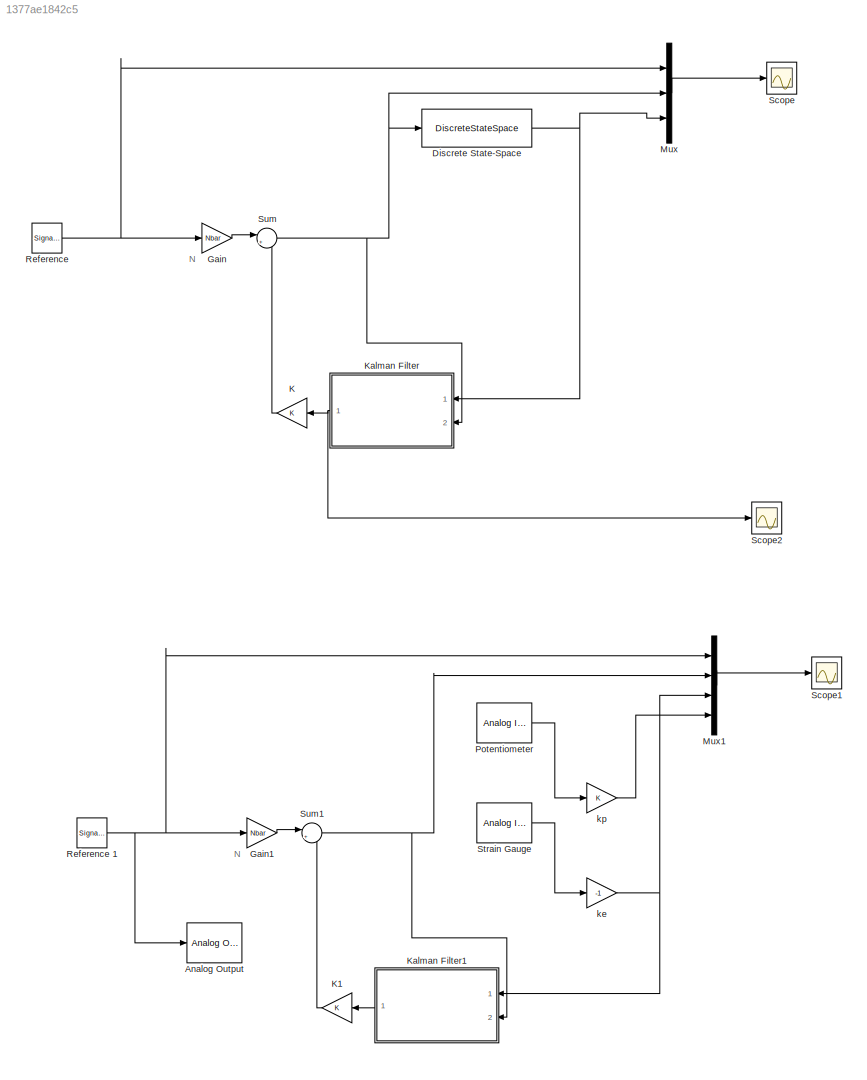
MODEL slx_1377ae1842c5
KIND model
CONFIG AbsTol = auto
CONFIG FixedStep = auto
CONFIG MaxStep = auto
CONFIG MinStep = auto
CONFIG RelTol = 1e-3
CONFIG SampleTimeConstraint = Unconstrained
CONFIG Solver = ode45
CONFIG SolverMode = Auto
CONFIG SolverName = ode45
CONFIG StartTime = 0.0
CONFIG StopTime = 10.0
BLOCK [Reference]  Potentiometer  REF=sldrtlib/Analog Input
  AttributesFormatString = National Instruments\nPCI-MIO-16E-4 [auto]
  Channels = 1
  Commented = on
  DataType = 1
  DrvAddress = 4294967295
  DrvName = National_Instruments/PCI-MIO-16E-4
  DrvOptions = [0 0 0 0 0 0]
  MaxMissedTicks = 10
  Ports = [0, 1]
  RangeMode = 1
  SampleTime = 0.01
  ShowMissedTicks = off
  SourceBlock = sldrtlib/Analog Input
  SourceType = Simulink Desktop Real-Time Analog Input
  VoltRange = 1
  YieldWhenWaiting = off
BLOCK [Reference] Analog Output  REF=sldrtlib/Analog Output
  AttributesFormatString = National Instruments\nPCI-MIO-16E-4 [auto]
  Channels = 1
  Commented = on
  DrvAddress = 4294967295
  DrvName = National_Instruments/PCI-MIO-16E-4
  DrvOptions = [0 0 0 0 0 0]
  FinalValue = 0
  InitialValue = 0
  MaxMissedTicks = 10
  Ports = [1]
  RangeMode = 1
  SampleTime = 0.01
  ShowMissedTicks = off
  SourceBlock = sldrtlib/Analog Output
  SourceType = Simulink Desktop Real-Time Analog Output
  VoltRange = 1
  YieldWhenWaiting = off
BLOCK [DiscreteStateSpace] Discrete State-Space
  A = A
  B = B
  C = C
  D = D
  SampleTime = 0.02
BLOCK [Gain] Gain
  Gain = Nbar
  Multiplication = Matrix(K*u)
  OutDataTypeStr = Inherit: Inherit via internal rule
  ParamDataTypeStr = Inherit: Inherit via internal rule
  SaturateOnIntegerOverflow = off
BLOCK [Gain] Gain1
  Commented = on
  Gain = Nbar
  Multiplication = Matrix(K*u)
  OutDataTypeStr = Inherit: Inherit via internal rule
  ParamDataTypeStr = Inherit: Inherit via internal rule
  SaturateOnIntegerOverflow = off
BLOCK [Gain] K
  Gain = K
  Multiplication = Matrix(K*u)
  OutDataTypeStr = Inherit: Inherit via internal rule
  ParamDataTypeStr = Inherit: Inherit via internal rule
  SaturateOnIntegerOverflow = off
BLOCK [Gain] K1
  Commented = on
  Gain = K
  Multiplication = Matrix(K*u)
  OutDataTypeStr = Inherit: Inherit via internal rule
  ParamDataTypeStr = Inherit: Inherit via internal rule
  SaturateOnIntegerOverflow = off
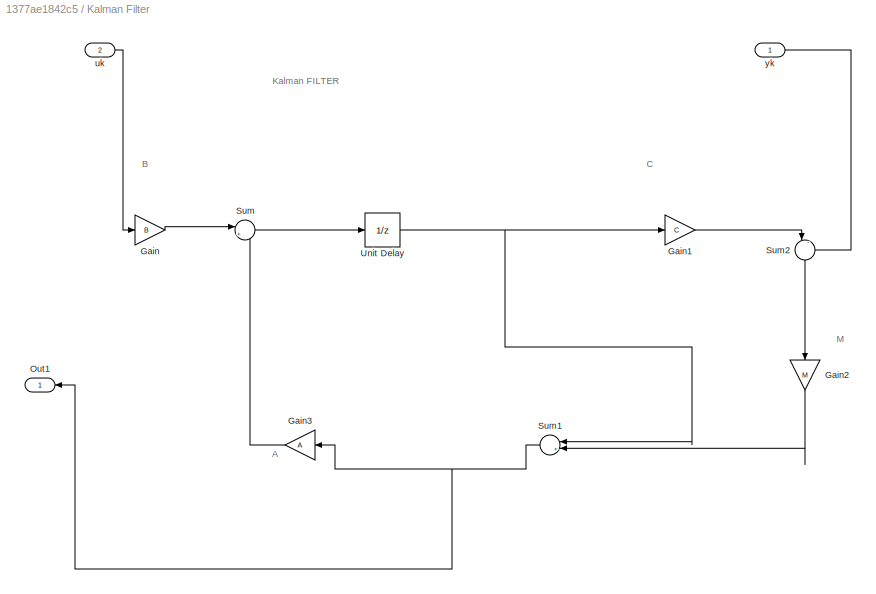
BLOCK [SubSystem] Kalman Filter
  Ports = [2, 1]
  RequestExecContextInheritance = off
BLOCK [Gain] Kalman Filter/Gain
  Gain = B
  Multiplication = Matrix(K*u)
  OutDataTypeStr = Inherit: Inherit via internal rule
  ParamDataTypeStr = Inherit: Inherit via internal rule
  SaturateOnIntegerOverflow = off
BLOCK [Gain] Kalman Filter/Gain1
  Gain = C
  Multiplication = Matrix(K*u)
  OutDataTypeStr = Inherit: Inherit via internal rule
  ParamDataTypeStr = Inherit: Inherit via internal rule
  SaturateOnIntegerOverflow = off
BLOCK [Gain] Kalman Filter/Gain2
  Gain = M
  Multiplication = Matrix(K*u)
  OutDataTypeStr = Inherit: Inherit via internal rule
  ParamDataTypeStr = Inherit: Inherit via internal rule
  SaturateOnIntegerOverflow = off
BLOCK [Gain] Kalman Filter/Gain3
  Gain = A
  Multiplication = Matrix(K*u)
  OutDataTypeStr = Inherit: Inherit via internal rule
  ParamDataTypeStr = Inherit: Inherit via internal rule
  SaturateOnIntegerOverflow = off
BLOCK [Outport] Kalman Filter/Out1
  IconDisplay = Port number
BLOCK [Sum] Kalman Filter/Sum
  IconShape = round
  InputSameDT = off
  Inputs = |++
  OutDataTypeStr = Inherit: Inherit via internal rule
  Ports = [2, 1]
  SaturateOnIntegerOverflow = off
BLOCK [Sum] Kalman Filter/Sum1
  IconShape = round
  InputSameDT = off
  Inputs = |++
  OutDataTypeStr = Inherit: Inherit via internal rule
  Ports = [2, 1]
  SaturateOnIntegerOverflow = off
BLOCK [Sum] Kalman Filter/Sum2
  IconShape = round
  InputSameDT = off
  Inputs = |-+
  OutDataTypeStr = Inherit: Inherit via internal rule
  Ports = [2, 1]
  SaturateOnIntegerOverflow = off
BLOCK [UnitDelay] Kalman Filter/Unit Delay
  InputProcessing = Elements as channels (sample based)
  SampleTime = -1
BLOCK [Inport] Kalman Filter/uk 
  IconDisplay = Port number
  Port = 2
BLOCK [Inport] Kalman Filter/yk 
  IconDisplay = Port number
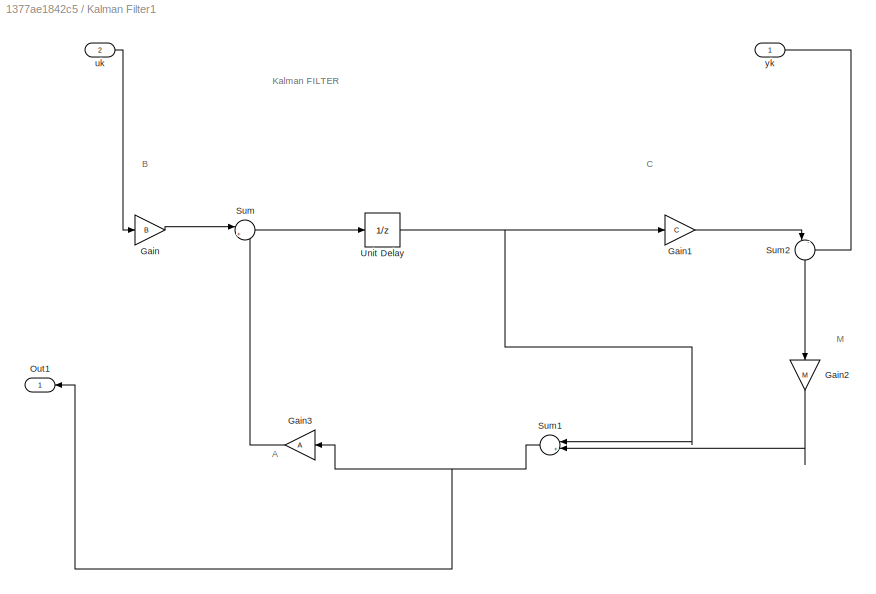
BLOCK [SubSystem] Kalman Filter1
  Commented = on
  Ports = [2, 1]
  RequestExecContextInheritance = off
BLOCK [Gain] Kalman Filter1/Gain
  Gain = B
  Multiplication = Matrix(K*u)
  OutDataTypeStr = Inherit: Inherit via internal rule
  ParamDataTypeStr = Inherit: Inherit via internal rule
  SaturateOnIntegerOverflow = off
BLOCK [Gain] Kalman Filter1/Gain1
  Gain = C
  Multiplication = Matrix(K*u)
  OutDataTypeStr = Inherit: Inherit via internal rule
  ParamDataTypeStr = Inherit: Inherit via internal rule
  SaturateOnIntegerOverflow = off
BLOCK [Gain] Kalman Filter1/Gain2
  Gain = M
  Multiplication = Matrix(K*u)
  OutDataTypeStr = Inherit: Inherit via internal rule
  ParamDataTypeStr = Inherit: Inherit via internal rule
  SaturateOnIntegerOverflow = off
BLOCK [Gain] Kalman Filter1/Gain3
  Gain = A
  Multiplication = Matrix(K*u)
  OutDataTypeStr = Inherit: Inherit via internal rule
  ParamDataTypeStr = Inherit: Inherit via internal rule
  SaturateOnIntegerOverflow = off
BLOCK [Outport] Kalman Filter1/Out1
  IconDisplay = Port number
BLOCK [Sum] Kalman Filter1/Sum
  IconShape = round
  InputSameDT = off
  Inputs = |++
  OutDataTypeStr = Inherit: Inherit via internal rule
  Ports = [2, 1]
  SaturateOnIntegerOverflow = off
BLOCK [Sum] Kalman Filter1/Sum1
  IconShape = round
  InputSameDT = off
  Inputs = |++
  OutDataTypeStr = Inherit: Inherit via internal rule
  Ports = [2, 1]
  SaturateOnIntegerOverflow = off
BLOCK [Sum] Kalman Filter1/Sum2
  IconShape = round
  InputSameDT = off
  Inputs = |-+
  OutDataTypeStr = Inherit: Inherit via internal rule
  Ports = [2, 1]
  SaturateOnIntegerOverflow = off
BLOCK [UnitDelay] Kalman Filter1/Unit Delay
  InputProcessing = Elements as channels (sample based)
  SampleTime = -1
BLOCK [Inport] Kalman Filter1/uk 
  IconDisplay = Port number
  Port = 2
BLOCK [Inport] Kalman Filter1/yk 
  IconDisplay = Port number
BLOCK [Mux] Mux
  DisplayOption = bar
  Inputs = 3
  Ports = [3, 1]
BLOCK [Mux] Mux1
  Commented = on
  DisplayOption = bar
  Ports = [4, 1]
BLOCK [SignalGenerator] Reference 
  Amplitude = 25
  Frequency = 0.4
  Ports = [0, 1]
  WaveForm = square
BLOCK [SignalGenerator] Reference 1
  Amplitude = 25
  Commented = on
  Frequency = 0.4
  Ports = [0, 1]
  WaveForm = square
BLOCK [Scope] Scope
  Floating = off
  LegendLocations = 0.83255     0.83137       0.125    0.055258
  NumInputPorts = 1
  Ports = [1]
  ShowLegends = on
  ZoomMode = xonly
BLOCK [Scope] Scope1
  Commented = on
  Floating = off
  NumInputPorts = 1
  Ports = [1]
  SaveName = ScopeData1
  ShowLegends = on
BLOCK [Scope] Scope2
  Floating = off
  LegendLocations = 0.83255     0.83137     0.10156    0.072014
  NumInputPorts = 1
  Ports = [1]
  SaveName = ScopeData2
  ShowLegends = on
BLOCK [Reference] Strain Gauge   REF=sldrtlib/Analog Input
  AttributesFormatString = National Instruments\nPCI-MIO-16E-4 [auto]
  Channels = 2
  Commented = on
  DataType = 1
  DrvAddress = 4294967295
  DrvName = National_Instruments/PCI-MIO-16E-4
  DrvOptions = [0 0 0 0 0 0]
  MaxMissedTicks = 10
  Ports = [0, 1]
  RangeMode = 1
  SampleTime = 0.01
  ShowMissedTicks = off
  SourceBlock = sldrtlib/Analog Input
  SourceType = Simulink Desktop Real-Time Analog Input
  VoltRange = 1
  YieldWhenWaiting = off
BLOCK [Sum] Sum
  IconShape = round
  InputSameDT = off
  Inputs = |+-
  OutDataTypeStr = Inherit: Inherit via internal rule
  Ports = [2, 1]
  SaturateOnIntegerOverflow = off
BLOCK [Sum] Sum1
  Commented = on
  IconShape = round
  InputSameDT = off
  Inputs = |+-
  OutDataTypeStr = Inherit: Inherit via internal rule
  Ports = [2, 1]
  SaturateOnIntegerOverflow = off
BLOCK [Gain] ke 
  Commented = on
  Gain = -1
  OutDataTypeStr = Inherit: Inherit via internal rule
  ParamDataTypeStr = Inherit: Inherit via internal rule
  SaturateOnIntegerOverflow = off
BLOCK [Gain] kp 
  Commented = on
  OutDataTypeStr = Inherit: Inherit via internal rule
  ParamDataTypeStr = Inherit: Inherit via internal rule
  SaturateOnIntegerOverflow = off
ANNOTATION (root): N
ANNOTATION Kalman Filter: A
ANNOTATION Kalman Filter: B
ANNOTATION Kalman Filter: C
ANNOTATION Kalman Filter: Kalman FILTER
ANNOTATION Kalman Filter: M
ANNOTATION Kalman Filter1: A
ANNOTATION Kalman Filter1: B
ANNOTATION Kalman Filter1: C
ANNOTATION Kalman Filter1: Kalman FILTER
ANNOTATION Kalman Filter1: M
LINE  Potentiometer:1 -> kp :1
NET Discrete State-Space:1 -> Kalman Filter:1, Mux:3
LINE Gain1:1 -> Sum1:1
LINE Gain:1 -> Sum:1
LINE K1:1 -> Sum1:2
LINE K:1 -> Sum:2
LINE Kalman Filter/Gain1:1 -> Kalman Filter/Sum2:1
LINE Kalman Filter/Gain2:1 -> Kalman Filter/Sum1:2
LINE Kalman Filter/Gain3:1 -> Kalman Filter/Sum:2
LINE Kalman Filter/Gain:1 -> Kalman Filter/Sum:1
NET Kalman Filter/Sum1:1 -> Kalman Filter/Gain3:1, Kalman Filter/Out1:1
LINE Kalman Filter/Sum2:1 -> Kalman Filter/Gain2:1
LINE Kalman Filter/Sum:1 -> Kalman Filter/Unit Delay:1
NET Kalman Filter/Unit Delay:1 -> Kalman Filter/Gain1:1, Kalman Filter/Sum1:1
LINE Kalman Filter/uk :1 -> Kalman Filter/Gain:1
LINE Kalman Filter/yk :1 -> Kalman Filter/Sum2:2
LINE Kalman Filter1/Gain1:1 -> Kalman Filter1/Sum2:1
LINE Kalman Filter1/Gain2:1 -> Kalman Filter1/Sum1:2
LINE Kalman Filter1/Gain3:1 -> Kalman Filter1/Sum:2
LINE Kalman Filter1/Gain:1 -> Kalman Filter1/Sum:1
NET Kalman Filter1/Sum1:1 -> Kalman Filter1/Gain3:1, Kalman Filter1/Out1:1
LINE Kalman Filter1/Sum2:1 -> Kalman Filter1/Gain2:1
LINE Kalman Filter1/Sum:1 -> Kalman Filter1/Unit Delay:1
NET Kalman Filter1/Unit Delay:1 -> Kalman Filter1/Gain1:1, Kalman Filter1/Sum1:1
LINE Kalman Filter1/uk :1 -> Kalman Filter1/Gain:1
LINE Kalman Filter1/yk :1 -> Kalman Filter1/Sum2:2
LINE Kalman Filter1:1 -> K1:1
NET Kalman Filter:1 -> K:1, Scope2:1
LINE Mux1:1 -> Scope1:1
LINE Mux:1 -> Scope:1
NET Reference 1:1 -> Analog Output:1, Gain1:1, Mux1:1
NET Reference :1 -> Gain:1, Mux:1
LINE Strain Gauge :1 -> ke :1
NET Sum1:1 -> Kalman Filter1:2, Mux1:2
NET Sum:1 -> Discrete State-Space:1, Kalman Filter:2, Mux:2
NET ke :1 -> Kalman Filter1:1, Mux1:3
LINE kp :1 -> Mux1:4
note: NET lines group one-source signal fan-out (src -> all destinations, sorted); 1:1 wires keep LINE
